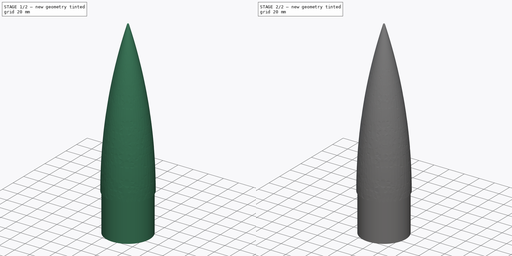
[diagram: build sequence overview — one tinted view per stage of 2, left to right]
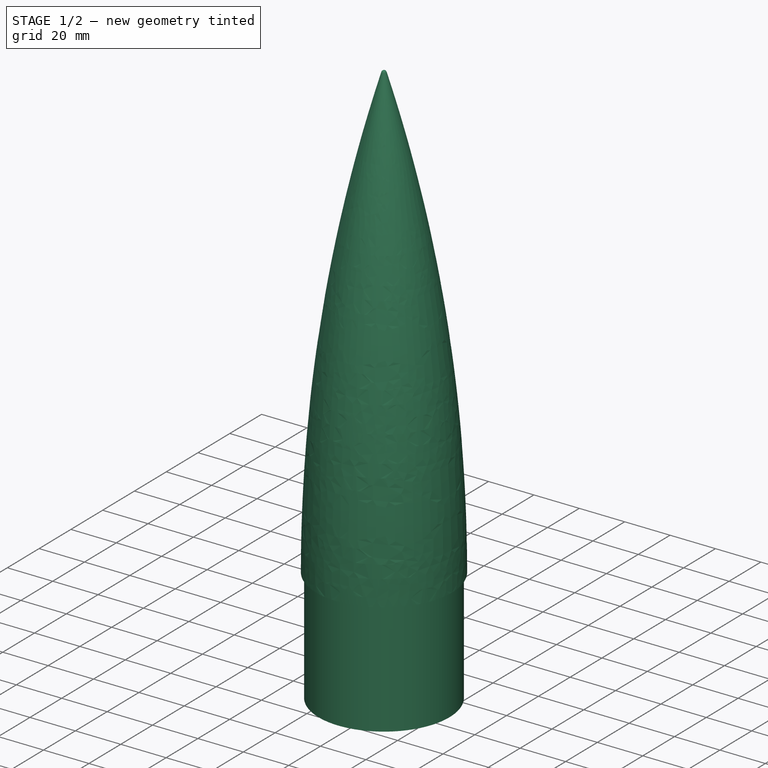
[diagram: stage 1 of 2 — iso view after this stage's code; geometry added in this stage tinted green]
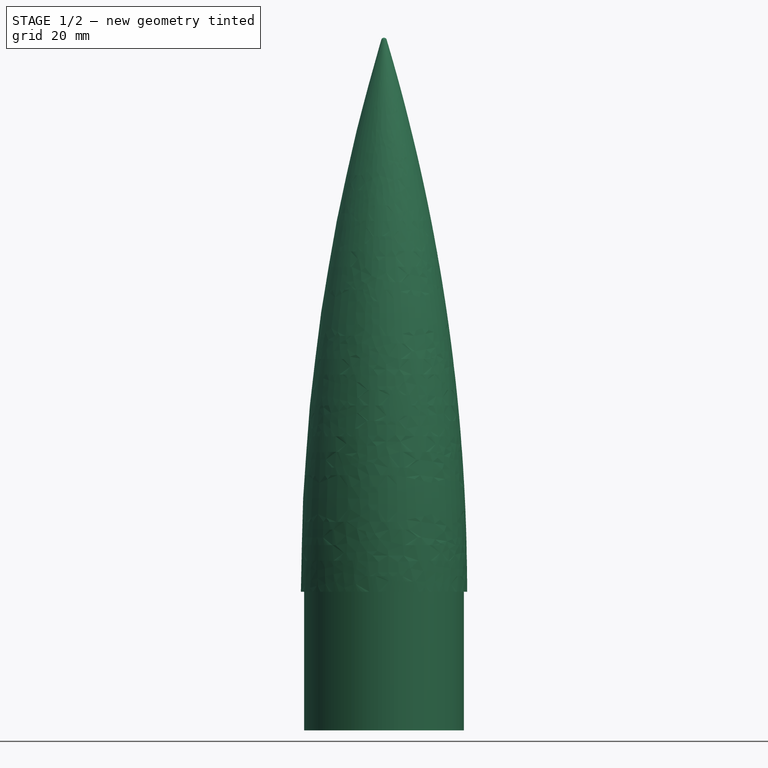
[diagram: stage 1 of 2 — front view after this stage's code; geometry added in this stage tinted green]
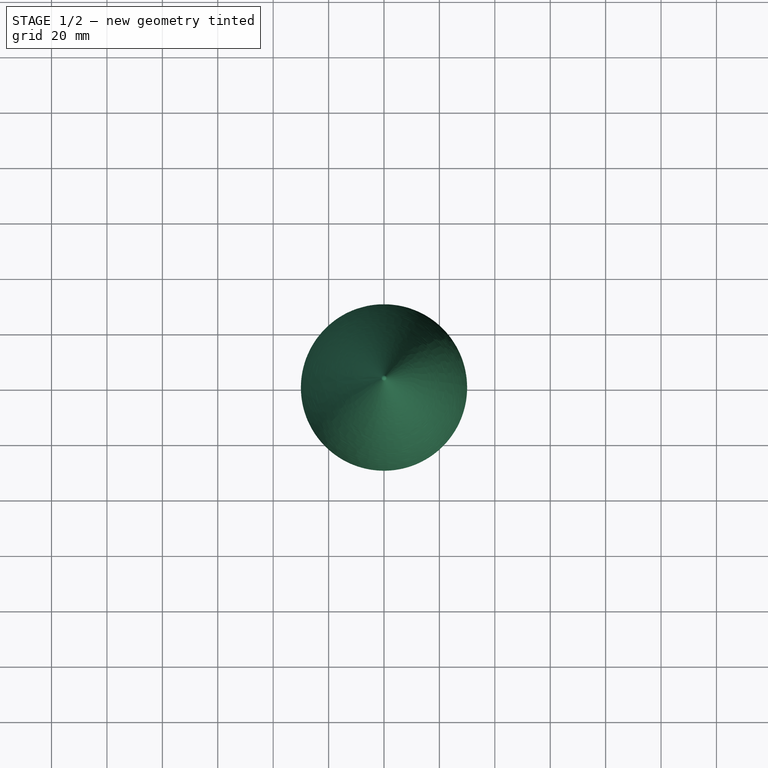
[diagram: stage 1 of 2 — top view after this stage's code; geometry added in this stage tinted green]
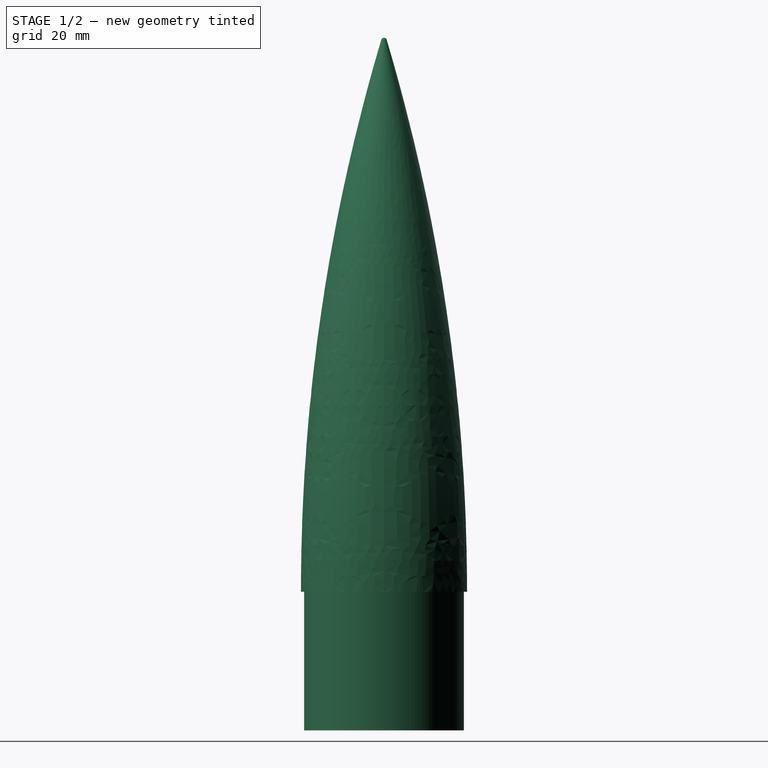
[diagram: stage 1 of 2 — right view after this stage's code; geometry added in this stage tinted green]
FCSTD DOCUMENT  (FreeCAD 1.1R42721 (Git))
Label: NoseConeCreator
License: All rights reserved
objects: App::Point×1, Sketcher::SketchObject×1, Spreadsheet::Sheet×1, PartDesign::Revolution×1, PartDesign::Thickness×1, PartDesign::Body×1
note: 9 computed .brp shape members not serialized (recipe doc carries the construction recipe); baked Part::Feature solids carry a one-line shape summary decoded from their .brp

FEATURE [App::Point] Origin001
  Role = Origin
FEATURE [Sketcher::SketchObject] Sketch
  ArcFitTolerance = 1e-06
  AttachmentSupport = -> [Origin]
  ExternalTypes = [0]
  FullyConstrained = true
  MakeInternals = false
  MapMode = 5
  Placement = pos=(0,0,0) rot=(1,0,0;1.5708rad)
  expr: Constraints[21] = Spreadsheet.cone_length
  expr: Constraints[22] = Spreadsheet.BT_diameter / 2
  expr: Constraints[23] = Spreadsheet.BT_tallThickness + 0.15
  expr: Constraints[24] = Spreadsheet.shoulder_length
  sketch-geometry (9):
    g0: LineSegment StartX=-28.85 StartY=0 StartZ=0 EndX=-28.85 EndY=-50 EndZ=0
    g1: LineSegment StartX=-28.85 StartY=-50 StartZ=0 EndX=0 EndY=-50 EndZ=0
    g2: LineSegment StartX=-28.85 StartY=0 StartZ=0 EndX=-30 EndY=0 EndZ=0
    g3: LineSegment StartX=0 StartY=-50 StartZ=0 EndX=0 EndY=0 EndZ=0
    g4: LineSegment [constr] StartX=0 StartY=0 StartZ=0 EndX=0 EndY=202.476 EndZ=0
    g5: ArcOfCircle [constr] CenterX=668.276 CenterY=0 CenterZ=0 NormalX=0 NormalY=0 NormalZ=1 AngleXU=0 Radius=698.276 StartAngle=2.8474 EndAngle=3.14159
    g6: ArcOfCircle CenterX=668.276 CenterY=3.306e-13 CenterZ=0 NormalX=0 NormalY=0 NormalZ=1 AngleXU=0 Radius=698.276 StartAngle=2.85217 EndAngle=3.14159
    g7: ArcOfCircle CenterX=0 CenterY=199 CenterZ=0 NormalX=0 NormalY=0 NormalZ=1 AngleXU=0 Radius=1 StartAngle=1.5708 EndAngle=2.85217
    g8: LineSegment StartX=0 StartY=200 StartZ=0 EndX=0 EndY=0 EndZ=0
  constraints (26):
    c: PointOnObject(g0,g-1)
    c: Vertical(g0)
    c: Coincident(g1,g0)
    c: PointOnObject(g1,g-2)
    c: Horizontal(g1)
    c: Coincident(g2,g0)
    c: PointOnObject(g2,g-1)
    c: Coincident(g3,g1)
    c: Coincident(g3,g-1)
    c: Coincident(g4,g3)
    c: PointOnObject(g4,g-2)
    c: Coincident(g5,g2)
    c: Coincident(g5,g4)
    c: Perpendicular(g5,g2)
    c: Coincident(g6,g2)
    c: Tangent(g6,g5) = -1.5708
    c: PointOnObject(g7,g4)
    c: Tangent(g7,g6) = -1.5708
    c: Perpendicular(g7,g4)
    c: Coincident(g8,g7)
    c: Coincident(g8,g3)
    c: DistanceY(g8,g8) = 200
    c: DistanceX(g2,g-1) = 30
    c: DistanceX(g2,g2) = 1.15
    c: Distance(g0,g0) = 50
    c: Radius(g7) = 1
FEATURE [Spreadsheet::Sheet] Spreadsheet
  cells = A1='Nose Cone Dimensions; A3='Enter all dimensions in millimeter; A4='Nose Cone Length; B4(cone_length)=200; A5='Body Tube Diameter; B5(BT_diameter)=60; A6='Body Tube Wall Thickness; B6(BT_tallThickness)=1; A7='Nose Cone Wall Thichness; B7(cone_wallThickness)=0.8; A8='Shoulder Length; B8(shoulder_length)=50; A13='Dimensions Converter ; B14='Dimension in Inches; C14='Converted to mm; A15='Inches -> Millimeter; B15=4; C15==B15 * 25.4
FEATURE [PartDesign::Revolution] Revolution
  Angle = 360
  Angle2 = 60
  Axis = (0,2e-16,1)
  Base = (0,0,0)
  Profile = -> Sketch
  ReferenceAxis = -> Sketch [V_Axis]
  Suppressed = false
  Type = 0
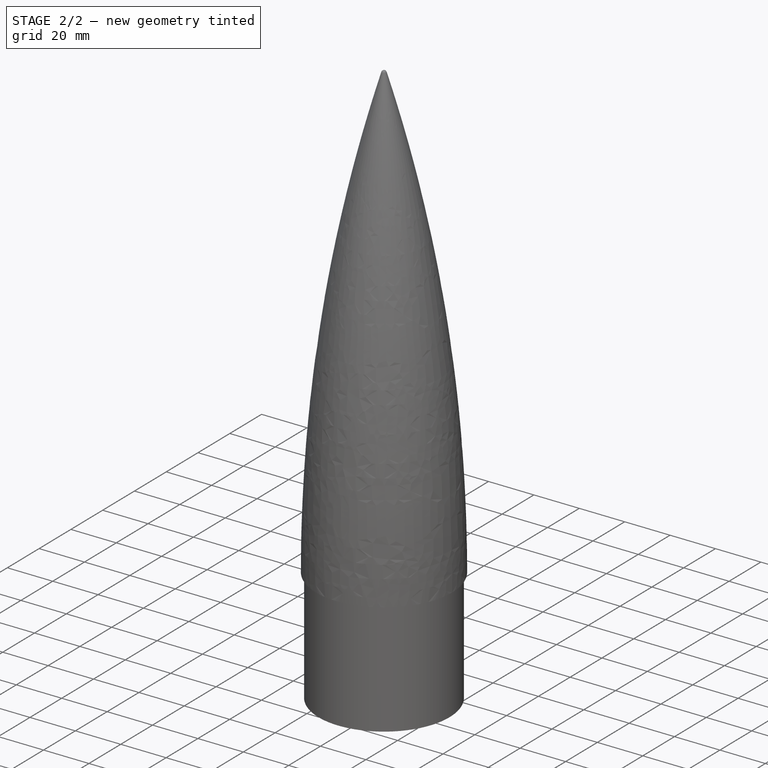
[diagram: stage 2 of 2 — iso view after this stage's code; geometry added in this stage tinted green]
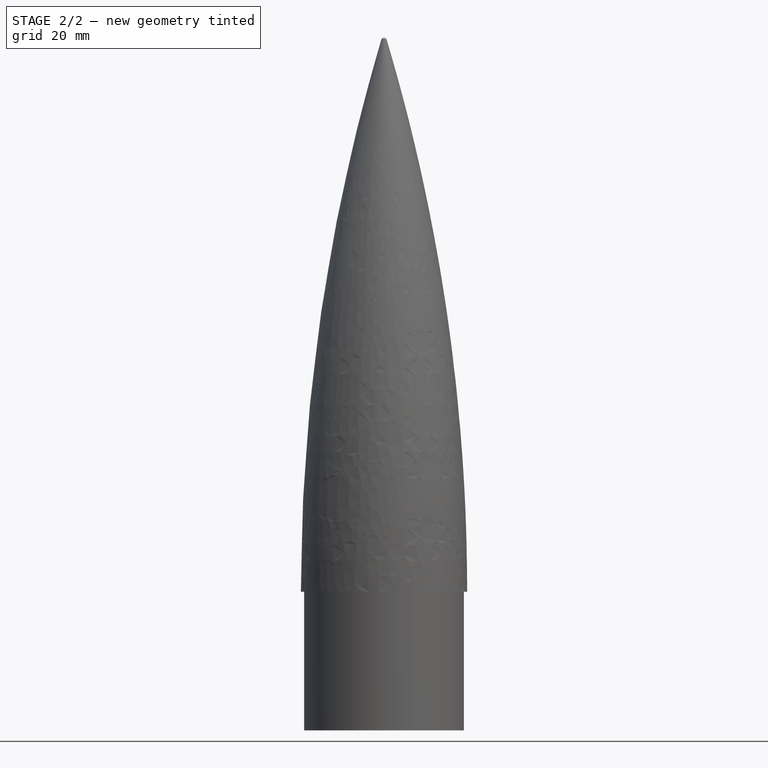
[diagram: stage 2 of 2 — front view after this stage's code; geometry added in this stage tinted green]
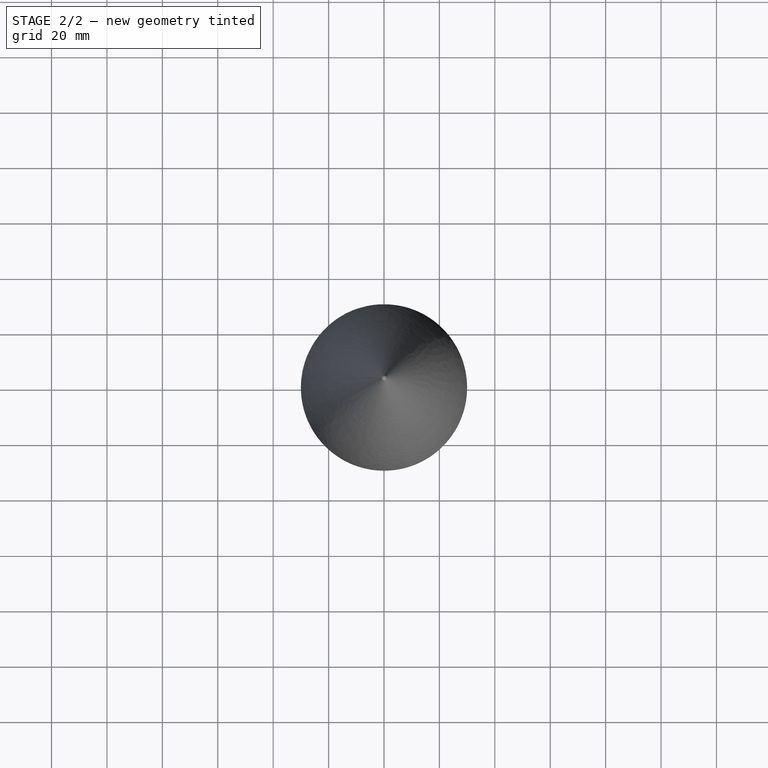
[diagram: stage 2 of 2 — top view after this stage's code; geometry added in this stage tinted green]
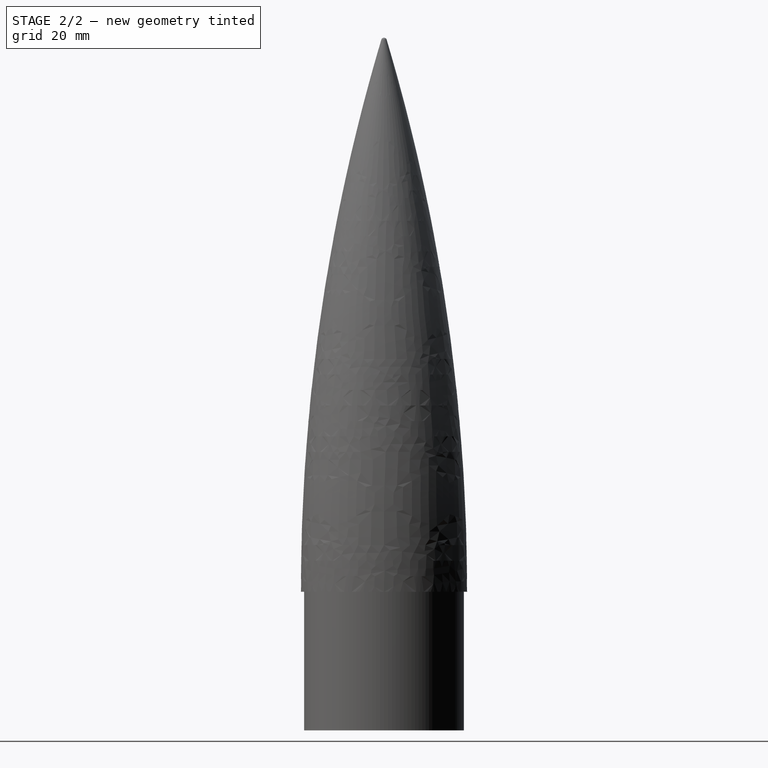
[diagram: stage 2 of 2 — right view after this stage's code; geometry added in this stage tinted green]
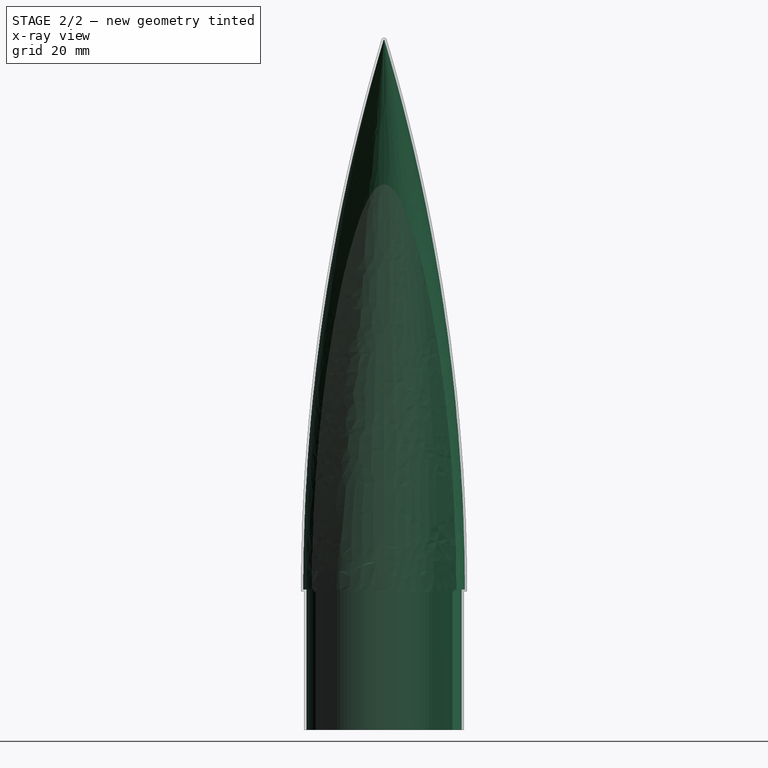
[diagram: stage 2 of 2 — x-ray composite at the right view; earlier geometry ghosted, this stage's added geometry solid]
FEATURE [PartDesign::Thickness] Thickness
  Base = -> Revolution [Face2]
  BaseFeature = -> Revolution
  Intersection = false
  Join = 1
  Mode = 0
  Reversed = true
  SupportTransform = false
  Suppressed = false
  Value = 0.8
  expr: Value = Spreadsheet.cone_wallThickness
FEATURE [PartDesign::Body] Body  label="Cone"
  AllowCompound = false
  Group = -> [Sketch,Revolution,Thickness]
  Origin = -> Origin
  Tip = -> Thickness
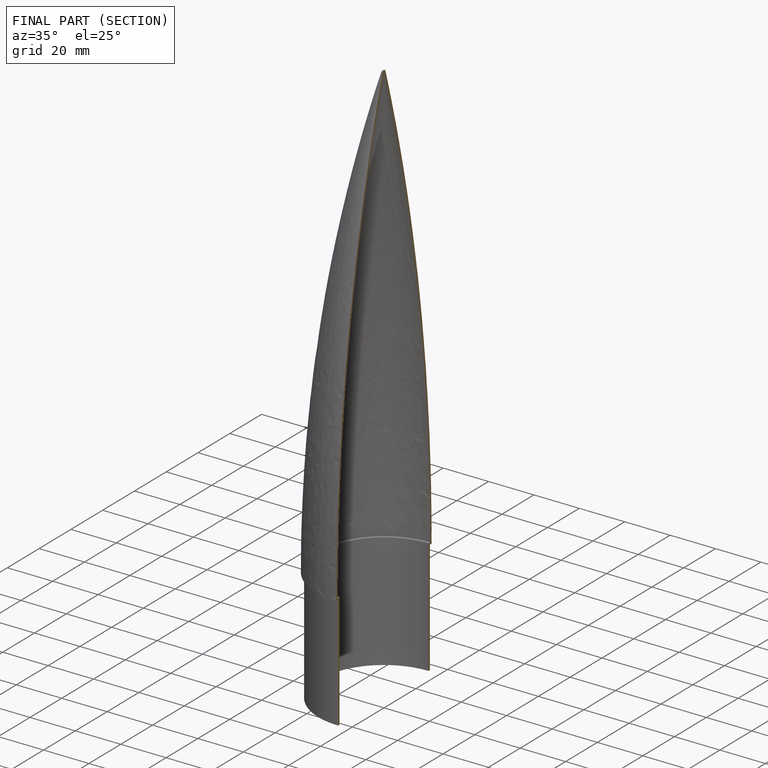
[diagram: finished part — half-section view (interior)]
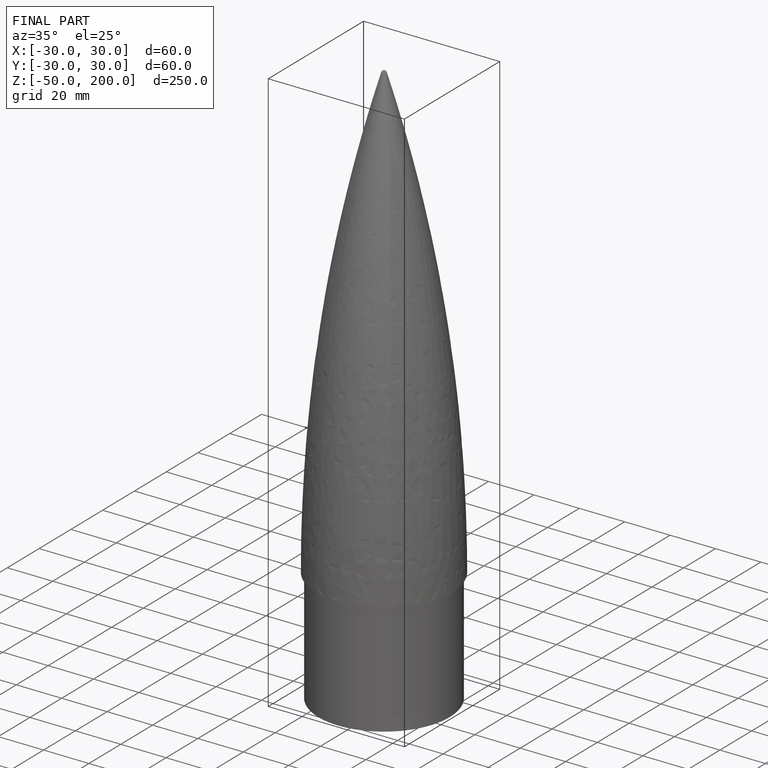
[diagram: finished part — iso view with bounding-box wireframe]
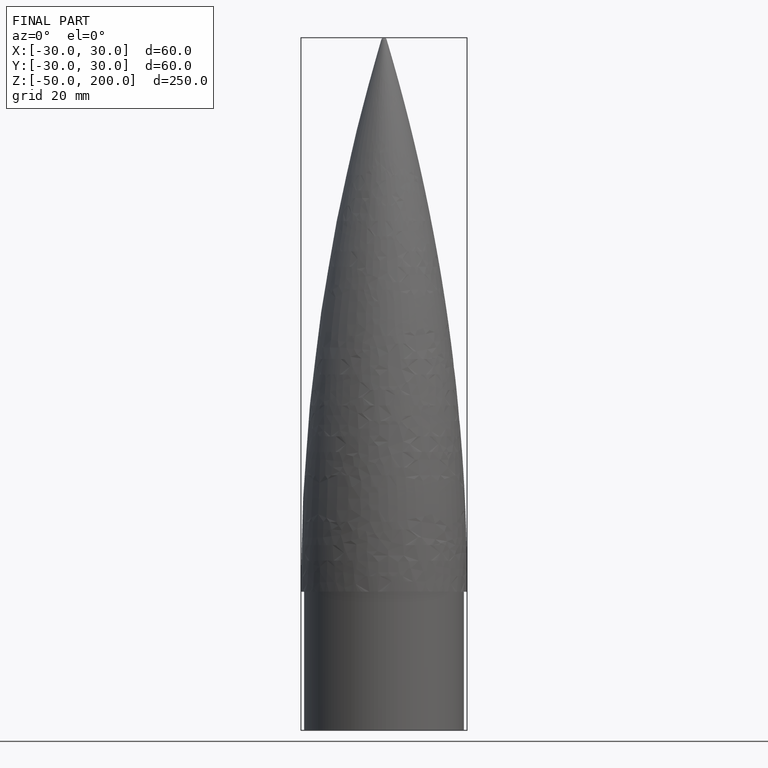
[diagram: finished part — front view with bounding-box wireframe]
